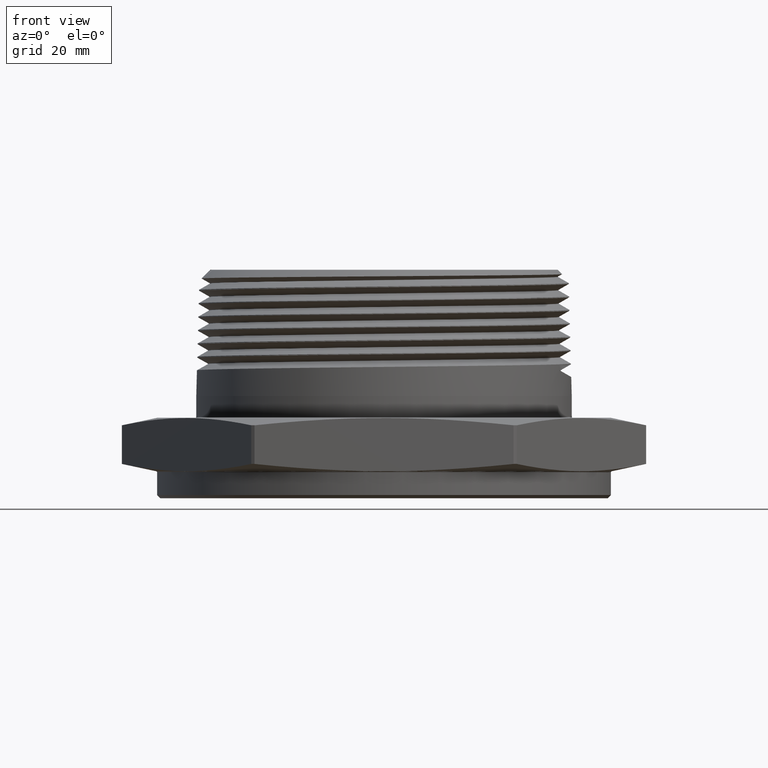
[diagram: clean part render]
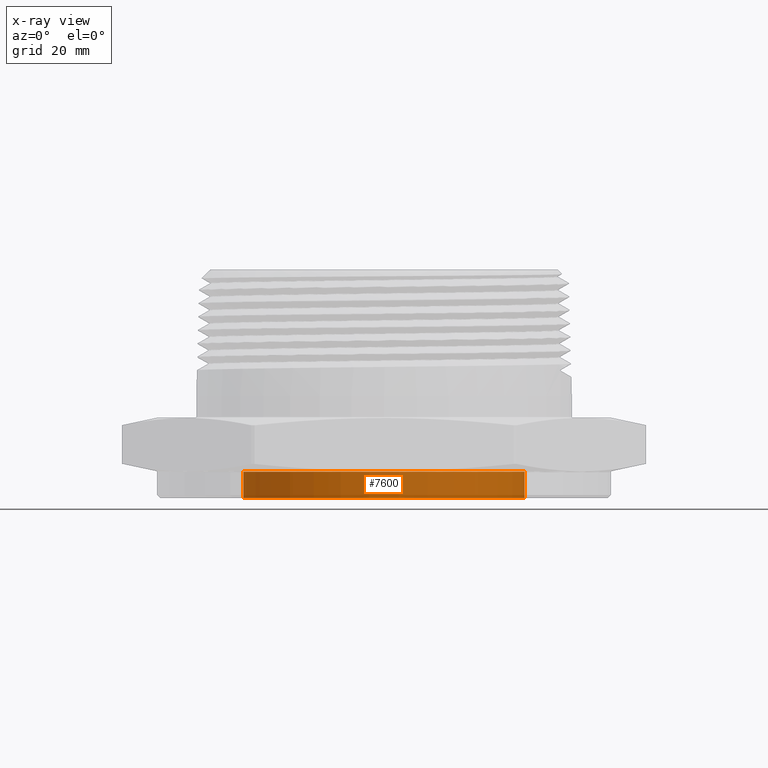
[diagram: x-ray — body ghosted, one internal face saturated and labeled with its STEP entity id]
A machine part, front view, then the same camera in x-ray: the body is ghosted and one INTERNAL B-rep face — a face not visible from any outside direction — is saturated and labeled: STEP entity #7600.
In plain terms, the highlighted cylindrical surface (partial cylindrical patch) has radius 33.274 mm, axis along (0, -0, -1).
Its self-contained STEP definition (entity closure, byte-faithful):
#1061 = DIRECTION ( 'NONE',  ( -1.000000000000000000, 0.0000000000000000000, 0.0000000000000000000 ) ) ;
#1062 = CARTESIAN_POINT ( 'NONE',  ( 4.898587196589325700E-018, 0.0000000000000000000, -0.2500000000000000000 ) ) ;
#1063 = DIRECTION ( 'NONE',  ( 3.475283666183381100E-018, -0.0000000000000000000, -1.000000000000000000 ) ) ;
#1203 = CARTESIAN_POINT ( 'NONE',  ( 1.310000000000000100, 1.604287306883032600E-016, -0.003779527559055103000 ) ) ;
#1206 = CARTESIAN_POINT ( 'NONE',  ( 1.310000000000000100, 1.604287306883032600E-016, -0.2500000000000000000 ) ) ;
#1208 = CARTESIAN_POINT ( 'NONE',  ( -1.310000000000000100, 0.0000000000000000000, -0.2500000000000000000 ) ) ;
#1210 = CARTESIAN_POINT ( 'NONE',  ( -1.310000000000000100, 0.0000000000000000000, -0.003779527559055112500 ) ) ;
#1386 = EDGE_CURVE ( 'NONE', #7774, #7772, #7433, .T. ) ;
#1387 = EDGE_CURVE ( 'NONE', #7770, #7772, #7434, .T. ) ;
#1388 = EDGE_CURVE ( 'NONE', #7766, #7770, #7431, .T. ) ;
#1389 = EDGE_CURVE ( 'NONE', #7766, #7774, #7437, .T. ) ;
#1521 = AXIS2_PLACEMENT_3D ( 'NONE', #4748, #4749, #4750 ) ;
#1522 = AXIS2_PLACEMENT_3D ( 'NONE', #4752, #4753, #4754 ) ;
#1568 = AXIS2_PLACEMENT_3D ( 'NONE', #1062, #1063, #1061 ) ;
#4736 = DIRECTION ( 'NONE',  ( 3.475283666183381100E-018, -0.0000000000000000000, -1.000000000000000000 ) ) ;
#4740 = CARTESIAN_POINT ( 'NONE',  ( -1.310000000000000100, 0.0000000000000000000, -0.2500000000000000000 ) ) ;
#4741 = DIRECTION ( 'NONE',  ( 3.475283666183381100E-018, -0.0000000000000000000, -1.000000000000000000 ) ) ;
#4747 = CARTESIAN_POINT ( 'NONE',  ( 1.310000000000000100, 1.604287306883032600E-016, -0.2500000000000000000 ) ) ;
#4748 = CARTESIAN_POINT ( 'NONE',  ( 4.898587196589325700E-018, 0.0000000000000000000, -0.2500000000000000000 ) ) ;
#4749 = DIRECTION ( 'NONE',  ( 3.475283666183381100E-018, -0.0000000000000000000, -1.000000000000000000 ) ) ;
#4750 = DIRECTION ( 'NONE',  ( -1.000000000000000000, 0.0000000000000000000, 0.0000000000000000000 ) ) ;
#4752 = CARTESIAN_POINT ( 'NONE',  ( 4.042901210435354600E-018, 0.0000000000000000000, -0.003779527559055107700 ) ) ;
#4753 = DIRECTION ( 'NONE',  ( 3.475283666183381100E-018, -0.0000000000000000000, -1.000000000000000000 ) ) ;
#4754 = DIRECTION ( 'NONE',  ( -1.000000000000000000, 0.0000000000000000000, -3.665707291116765800E-018 ) ) ;
#7431 = LINE ( 'NONE', #4747, #7438 ) ;
#7433 = LINE ( 'NONE', #4740, #7435 ) ;
#7434 = CIRCLE ( 'NONE', #1521, 1.310000000000000100 ) ;
#7435 = VECTOR ( 'NONE', #4736, 39.37007874015748100 ) ;
#7437 = CIRCLE ( 'NONE', #1522, 1.310000000000000100 ) ;
#7438 = VECTOR ( 'NONE', #4741, 39.37007874015748100 ) ;
#7517 = FACE_OUTER_BOUND ( 'NONE', #7908, .T. ) ;
#7526 = CYLINDRICAL_SURFACE ( 'NONE', #1568, 1.310000000000000100 ) ;
#7600 = ADVANCED_FACE ( 'NONE', ( #7517 ), #7526, .F. ) ;
#7766 = VERTEX_POINT ( 'NONE', #1203 ) ;
#7770 = VERTEX_POINT ( 'NONE', #1206 ) ;
#7772 = VERTEX_POINT ( 'NONE', #1208 ) ;
#7774 = VERTEX_POINT ( 'NONE', #1210 ) ;
#7908 = EDGE_LOOP ( 'NONE', ( #7916, #7917, #7918, #7919 ) ) ;
#7916 = ORIENTED_EDGE ( 'NONE', *, *, #1389, .F. ) ;
#7917 = ORIENTED_EDGE ( 'NONE', *, *, #1388, .T. ) ;
#7918 = ORIENTED_EDGE ( 'NONE', *, *, #1387, .T. ) ;
#7919 = ORIENTED_EDGE ( 'NONE', *, *, #1386, .F. ) ;